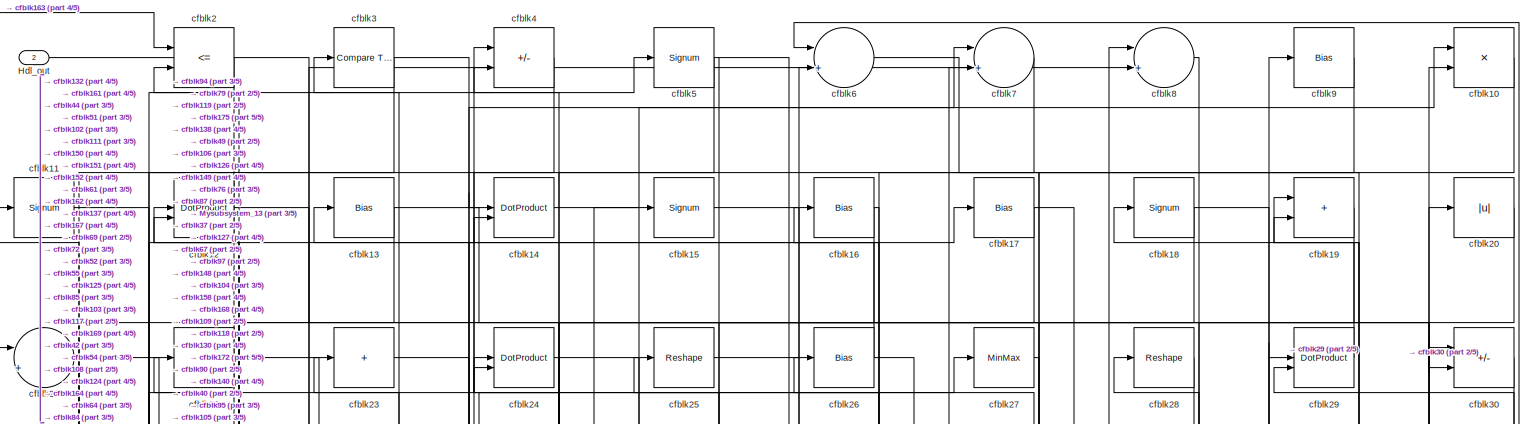
[diagram: root canvas - part 1/5, full width, top band]
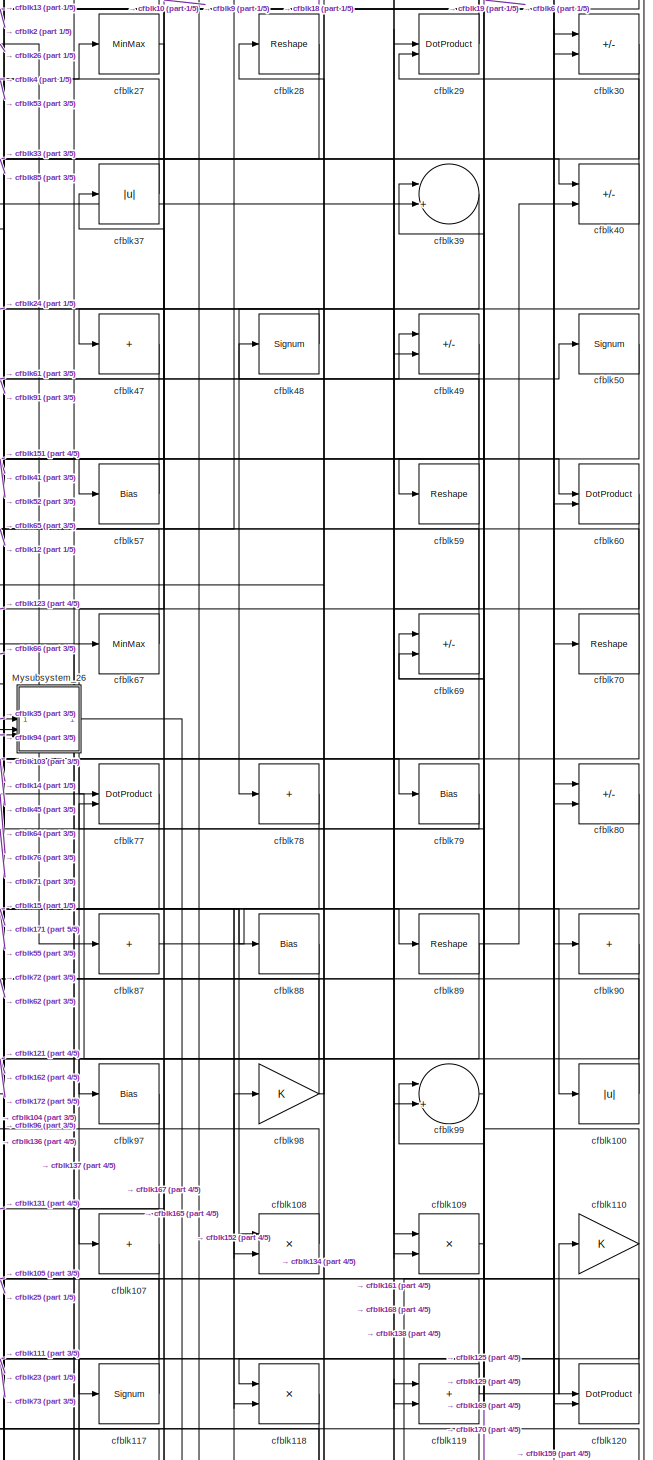
[diagram: root canvas - part 2/5, middle right region]
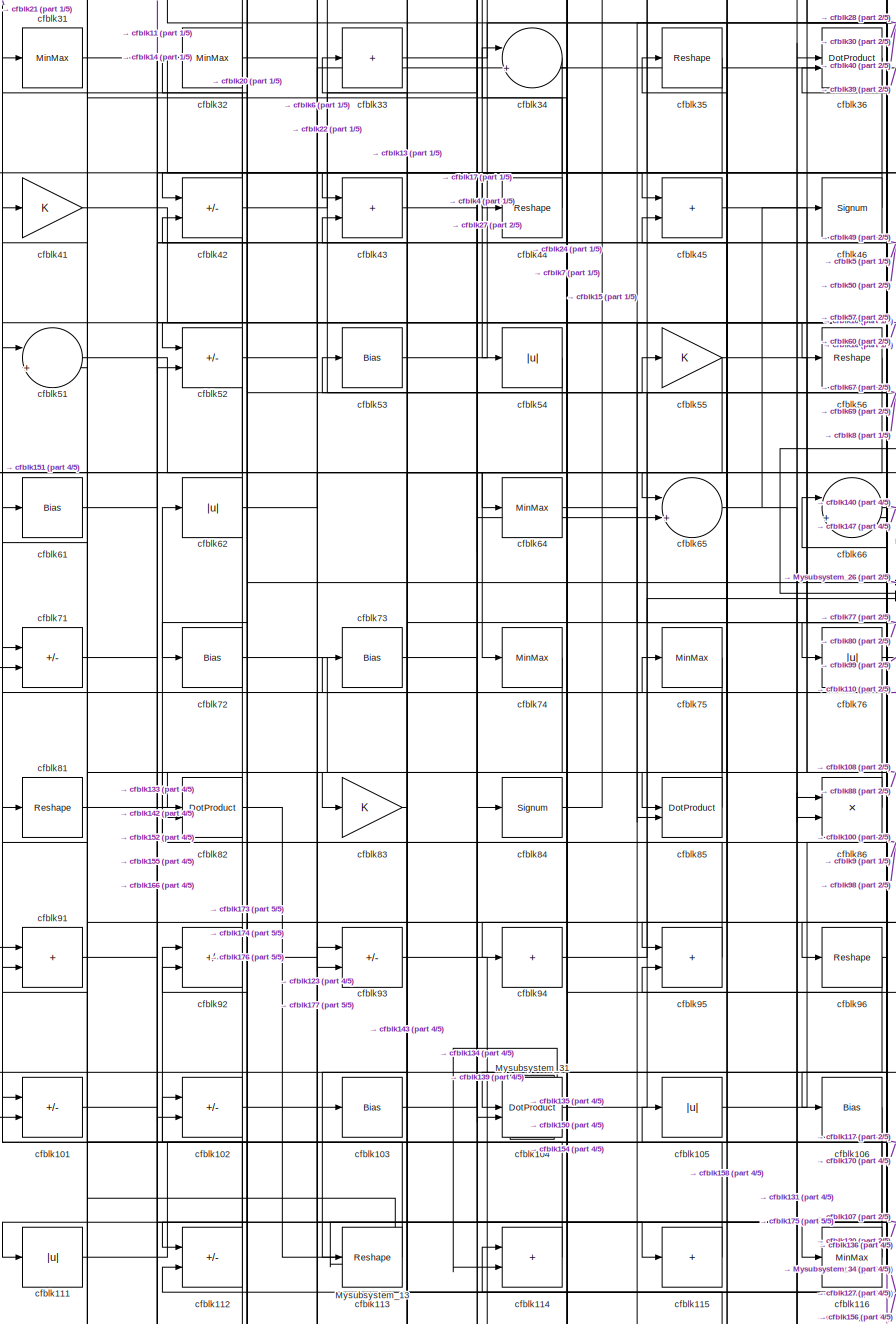
[diagram: root canvas - part 3/5, middle left region]
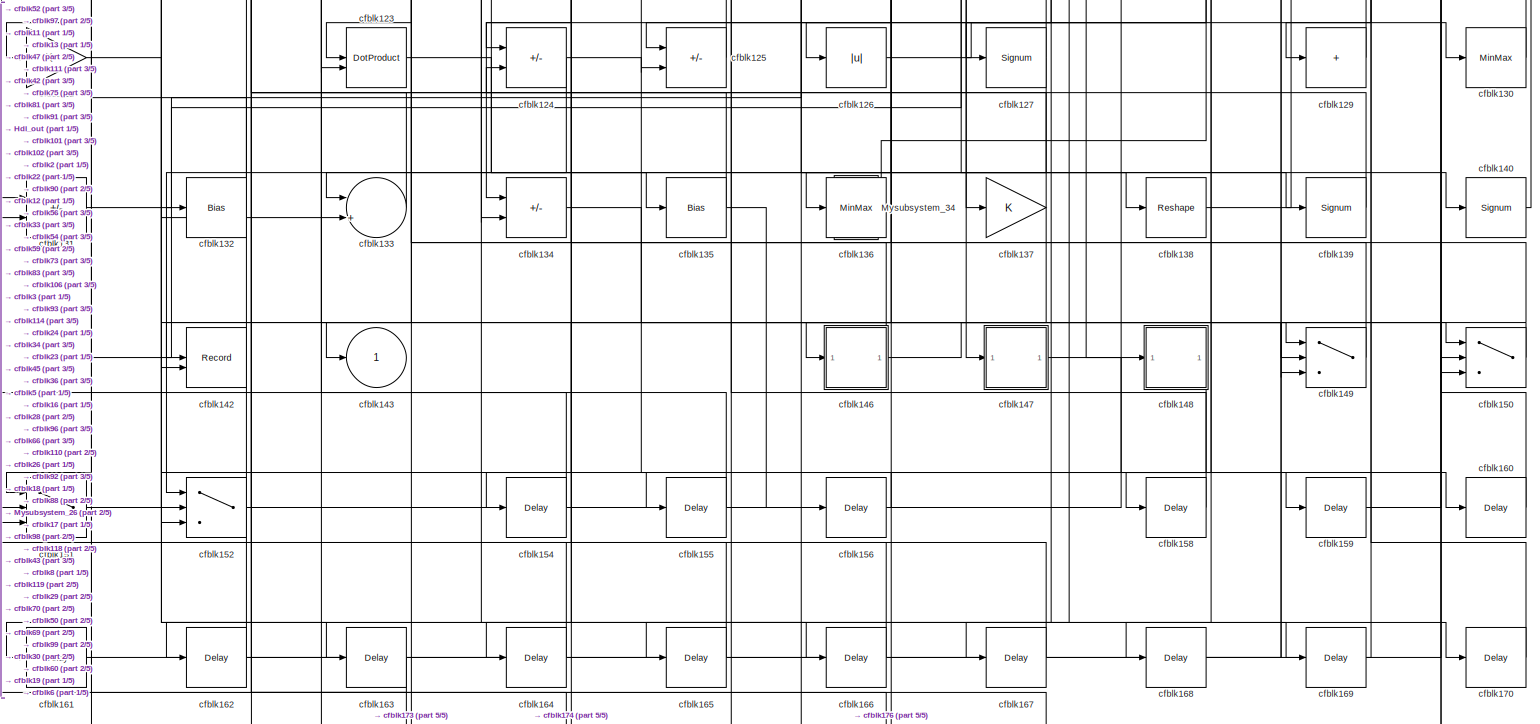
[diagram: root canvas - part 4/5, full width, bottom band]
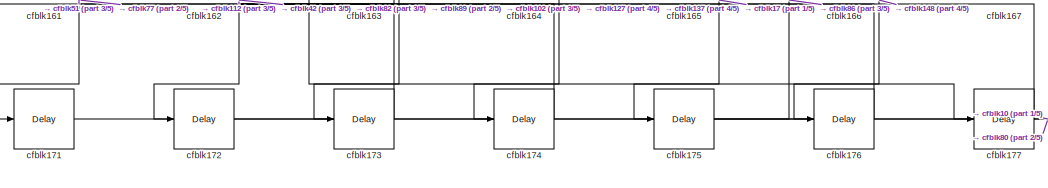
[diagram: root canvas - part 5/5, bottom center region]
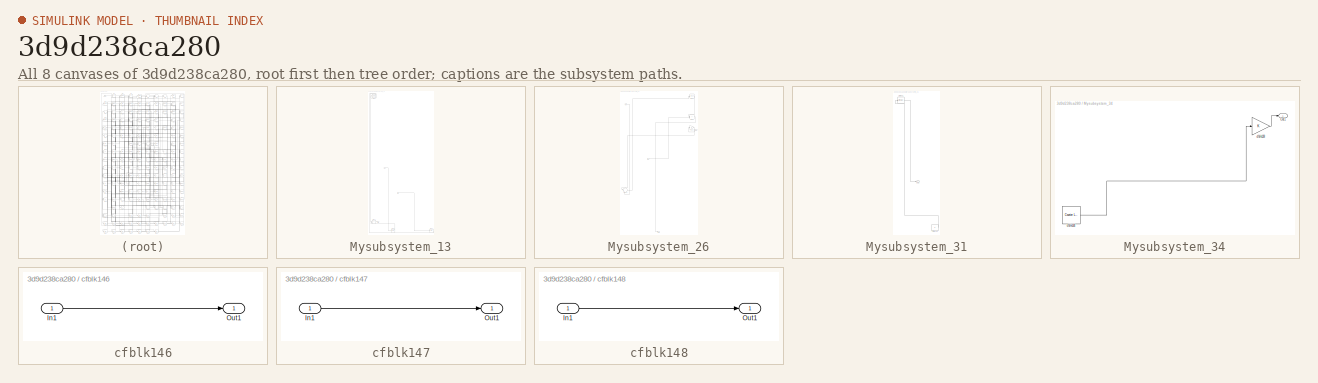
[diagram: thumbnail index - all 8 canvases of the model, root first then tree order]
MODEL slx_3d9d238ca280
KIND model
CONFIG AbsTol = auto
CONFIG EnableMultiTasking = off
CONFIG FixedStep = auto
CONFIG MaxStep = auto
CONFIG MinStep = auto
CONFIG RelTol = 1e-3
CONFIG SampleTimeConstraint = Unconstrained
CONFIG SolverName = VariableStepAuto
CONFIG StartTime = 0.0
CONFIG StopTime = 10.0
BLOCK [Outport] Hdl_out
  OutDataTypeStr = uint8
  Port = 2
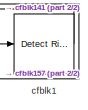
[diagram: Mysubsystem_13 - part 1/2, top left region]
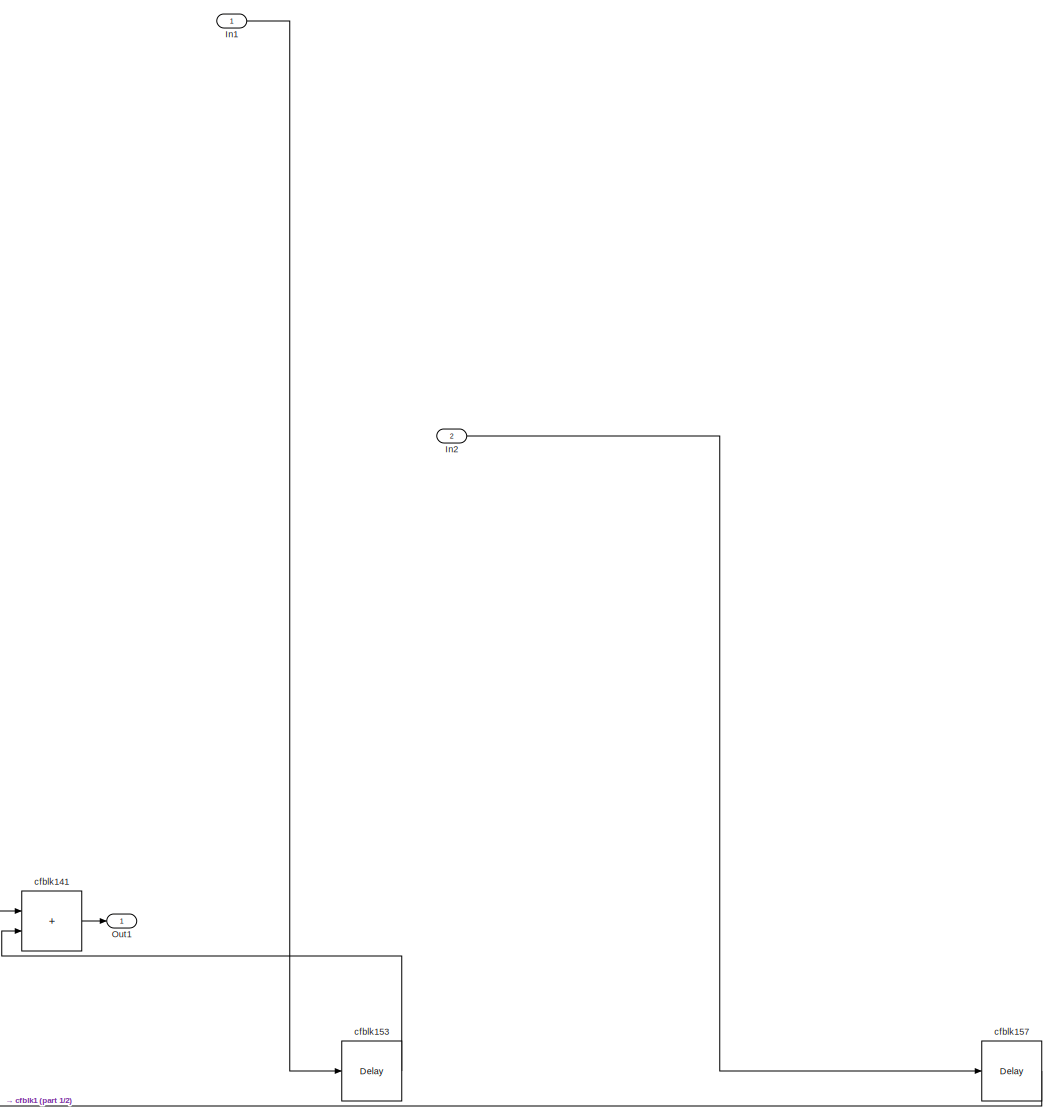
[diagram: Mysubsystem_13 - part 2/2, full width, bottom band]
BLOCK [SubSystem] Mysubsystem_13
  RTWFcnName = Mysubsystem_13
  RTWFcnNameOpts = User specified
  RTWFileNameOpts = Use function name
  RTWSystemCode = Reusable function
  TreatAsAtomicUnit = on
BLOCK [Inport] Mysubsystem_13/In1
BLOCK [Inport] Mysubsystem_13/In2
  Port = 2
BLOCK [Outport] Mysubsystem_13/Out1
BLOCK [Reference] Mysubsystem_13/cfblk1  REF=hdlsllib/Logic and Bit
Operations/Detect Rise
Positive
  SourceBlock = hdlsllib/Logic and Bit\nOperations/Detect Rise\nPositive
  SourceType = Detect Rise Positive
BLOCK [Sum] Mysubsystem_13/cfblk141
  IconShape = rectangular
BLOCK [Delay] Mysubsystem_13/cfblk153
  InputPortMap = u0
  SampleTime = 1
BLOCK [Delay] Mysubsystem_13/cfblk157
  InputPortMap = u0
  SampleTime = 1
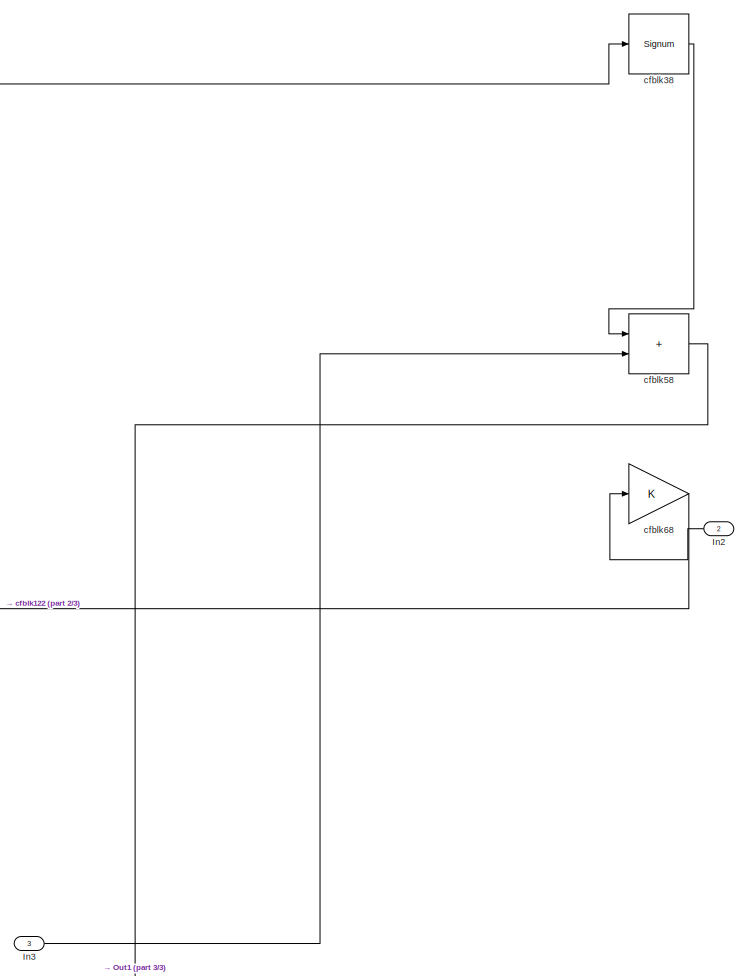
[diagram: Mysubsystem_26 - part 1/3, top center region]
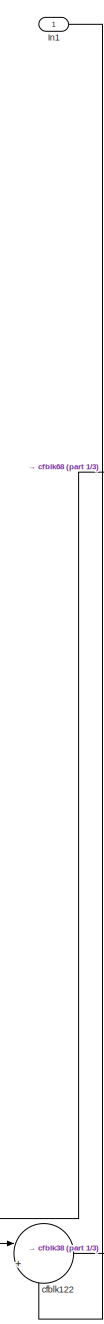
[diagram: Mysubsystem_26 - part 2/3, middle left region]
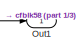
[diagram: Mysubsystem_26 - part 3/3, bottom center region]
BLOCK [SubSystem] Mysubsystem_26
  RTWFcnName = Mysubsystem_26
  RTWFcnNameOpts = User specified
  RTWFileNameOpts = Use function name
  RTWSystemCode = Reusable function
  TreatAsAtomicUnit = on
BLOCK [Inport] Mysubsystem_26/In1
BLOCK [Inport] Mysubsystem_26/In2
  Port = 2
BLOCK [Inport] Mysubsystem_26/In3
  Port = 3
BLOCK [Outport] Mysubsystem_26/Out1
BLOCK [Sum] Mysubsystem_26/cfblk122
  Inputs = |++
BLOCK [Signum] Mysubsystem_26/cfblk38
BLOCK [Sum] Mysubsystem_26/cfblk58
  IconShape = rectangular
BLOCK [Gain] Mysubsystem_26/cfblk68
BLOCK [SubSystem] Mysubsystem_31
  RTWFcnName = Mysubsystem_31
  RTWFcnNameOpts = User specified
  RTWFileNameOpts = Use function name
  RTWSystemCode = Reusable function
  TreatAsAtomicUnit = on
BLOCK [Outport] Mysubsystem_31/Out1
BLOCK [Constant] Mysubsystem_31/cfblk145
  SampleTime = -1
BLOCK [MinMax] Mysubsystem_31/cfblk63
BLOCK [SubSystem] Mysubsystem_34
  RTWFcnName = Mysubsystem_34
  RTWFcnNameOpts = User specified
  RTWFileNameOpts = Use function name
  RTWSystemCode = Reusable function
  TreatAsAtomicUnit = on
BLOCK [Outport] Mysubsystem_34/Out1
BLOCK [Gain] Mysubsystem_34/cfblk128
BLOCK [Reference] Mysubsystem_34/cfblk144  REF=hdlsllib/Sources/Counter
Limited
  SourceBlock = hdlsllib/Sources/Counter\nLimited
  SourceType = Counter Limited
BLOCK [Product] cfblk10
  Inputs = */
  OutDataTypeStr = uint8
  RndMeth = Zero
  SaturateOnIntegerOverflow = on
BLOCK [Abs] cfblk100
  OutDataTypeStr = uint8
  SaturateOnIntegerOverflow = off
BLOCK [Sum] cfblk101
  IconShape = rectangular
  Inputs = +-
  OutDataTypeStr = uint8
BLOCK [Sum] cfblk102
  IconShape = rectangular
  Inputs = +-
  OutDataTypeStr = uint8
BLOCK [Bias] cfblk103
  Bias = 0.0
  SaturateOnIntegerOverflow = off
BLOCK [DotProduct] cfblk104
  OutDataTypeStr = uint8
BLOCK [Abs] cfblk105
  OutDataTypeStr = uint8
  SaturateOnIntegerOverflow = off
BLOCK [Bias] cfblk106
  Bias = 0.0
  SaturateOnIntegerOverflow = off
BLOCK [Sum] cfblk107
  IconShape = rectangular
  Inputs = +
  OutDataTypeStr = uint8
BLOCK [Product] cfblk108
  Inputs = */
  OutDataTypeStr = uint8
  RndMeth = Zero
  SaturateOnIntegerOverflow = on
BLOCK [Product] cfblk109
  Inputs = */
  OutDataTypeStr = uint8
  RndMeth = Zero
  SaturateOnIntegerOverflow = on
BLOCK [Signum] cfblk11
BLOCK [Gain] cfblk110
  OutDataTypeStr = uint8
BLOCK [Abs] cfblk111
  OutDataTypeStr = uint8
  SaturateOnIntegerOverflow = off
BLOCK [Sum] cfblk112
  IconShape = rectangular
  Inputs = +-
  OutDataTypeStr = uint8
BLOCK [Reshape] cfblk113
BLOCK [Sum] cfblk114
  IconShape = rectangular
  OutDataTypeStr = uint8
BLOCK [Sum] cfblk115
  IconShape = rectangular
  Inputs = +
  OutDataTypeStr = uint8
BLOCK [MinMax] cfblk116
  OutDataTypeStr = uint8
BLOCK [Signum] cfblk117
BLOCK [Product] cfblk118
  Inputs = */
  OutDataTypeStr = uint8
  RndMeth = Zero
  SaturateOnIntegerOverflow = on
BLOCK [Sum] cfblk119
  IconShape = rectangular
  OutDataTypeStr = uint8
BLOCK [DotProduct] cfblk12
  OutDataTypeStr = uint8
BLOCK [DotProduct] cfblk120
  OutDataTypeStr = uint8
BLOCK [Gain] cfblk121
  OutDataTypeStr = uint8
BLOCK [DotProduct] cfblk123
  OutDataTypeStr = uint8
BLOCK [Sum] cfblk124
  IconShape = rectangular
  Inputs = +-
  OutDataTypeStr = uint8
BLOCK [Sum] cfblk125
  IconShape = rectangular
  Inputs = +-
  OutDataTypeStr = uint8
BLOCK [Abs] cfblk126
  OutDataTypeStr = uint8
  SaturateOnIntegerOverflow = off
BLOCK [Signum] cfblk127
BLOCK [Sum] cfblk129
  IconShape = rectangular
  Inputs = +
  OutDataTypeStr = uint8
BLOCK [Bias] cfblk13
  Bias = 0.0
  SaturateOnIntegerOverflow = off
BLOCK [MinMax] cfblk130
  OutDataTypeStr = uint8
BLOCK [Sum] cfblk131
  IconShape = rectangular
  Inputs = +-
  OutDataTypeStr = uint8
BLOCK [Bias] cfblk132
  Bias = 0.0
  SaturateOnIntegerOverflow = off
BLOCK [Sum] cfblk133
  Inputs = |++
  OutDataTypeStr = uint8
BLOCK [Sum] cfblk134
  IconShape = rectangular
  Inputs = +-
  OutDataTypeStr = uint8
BLOCK [Bias] cfblk135
  Bias = 0.0
  SaturateOnIntegerOverflow = off
BLOCK [MinMax] cfblk136
  OutDataTypeStr = uint8
BLOCK [Gain] cfblk137
  OutDataTypeStr = uint8
BLOCK [Reshape] cfblk138
BLOCK [Signum] cfblk139
BLOCK [DotProduct] cfblk14
  OutDataTypeStr = uint8
BLOCK [Signum] cfblk140
BLOCK [Record] cfblk142
  CompatibilityTag = XY
  FileSettingsInternal = {"entries":[{"content":{"excelSettings":{"content":{},"type":"Streamout.ExcelSettings"}},"type":"Streamout.FileSettingStorage","uuid":""}],"packageUris":["http:\/\/schema.mathworks.com\/mf0\/streamout_blocks\/R2020a"],"version":"1.0"}
  Layout = [1 1]
  SignalsInternal = {"entries":[{"content":{"signals":[{"content":{"blockPath":[],"dimensions":[1],"domain":"","lineColor":"#a2142f","plots":[1],"port":1,"signalID":20420,"signalName":"cfblk150"},"type":"RecordBlkView.Signal","uuid":""},{"content":{"blockPath":[],"dimensions":[1],"domain":"","lineColor":"#139fff","plots":[1],"port":2,"signalID":20423,"signalName":"cfblk75"},"type":"RecordBlkView.Signal","uuid":""}]},...<+143ch>
  VisualizationBindings = {"xyplotplugin":{"info":[{"series":[{"bindingParametersList":[{"parameter":"X-Axis","signalID":20420,"signalName":"cfblk150"},{"parameter":"Y-Axis","signalID":20423,"signalName":"cfblk75"}],"seriesID":10200}],"subplotID":1}]}}
  st = -1
BLOCK [Outport] cfblk143
  OutDataTypeStr = uint8
  VectorParamsAs1DForOutWhenUnconnected = off
BLOCK [SubSystem] cfblk146
  LibrarySourceBlock = hdlsllib/Ports &\nSubsystems/Subsystem
BLOCK [Inport] cfblk146/In1
BLOCK [Outport] cfblk146/Out1
BLOCK [SubSystem] cfblk147
  LibrarySourceBlock = hdlsllib/Ports &\nSubsystems/Subsystem
BLOCK [Inport] cfblk147/In1
BLOCK [Outport] cfblk147/Out1
BLOCK [SubSystem] cfblk148
  LibrarySourceBlock = hdlsllib/Ports &\nSubsystems/Subsystem
BLOCK [Inport] cfblk148/In1
BLOCK [Outport] cfblk148/Out1
BLOCK [Switch] cfblk149
  InputSameDT = off
  OutDataTypeStr = uint8
  SaturateOnIntegerOverflow = off
BLOCK [Signum] cfblk15
BLOCK [Switch] cfblk150
  InputSameDT = off
  OutDataTypeStr = uint8
  SaturateOnIntegerOverflow = off
BLOCK [Switch] cfblk151
  InputSameDT = off
  OutDataTypeStr = uint8
  SaturateOnIntegerOverflow = off
BLOCK [Switch] cfblk152
  InputSameDT = off
  OutDataTypeStr = uint8
  SaturateOnIntegerOverflow = off
BLOCK [Delay] cfblk154
  InputPortMap = u0
  SampleTime = 1
BLOCK [Delay] cfblk155
  InputPortMap = u0
  SampleTime = 1
BLOCK [Delay] cfblk156
  InputPortMap = u0
  SampleTime = 1
BLOCK [Delay] cfblk158
  InputPortMap = u0
  SampleTime = 1
BLOCK [Delay] cfblk159
  InputPortMap = u0
  SampleTime = 1
BLOCK [Bias] cfblk16
  Bias = 0.0
  SaturateOnIntegerOverflow = off
BLOCK [Delay] cfblk160
  InputPortMap = u0
  SampleTime = 1
BLOCK [Delay] cfblk161
  InputPortMap = u0
  SampleTime = 1
BLOCK [Delay] cfblk162
  InputPortMap = u0
  SampleTime = 1
BLOCK [Delay] cfblk163
  InputPortMap = u0
  SampleTime = 1
BLOCK [Delay] cfblk164
  InputPortMap = u0
  SampleTime = 1
BLOCK [Delay] cfblk165
  InputPortMap = u0
  SampleTime = 1
BLOCK [Delay] cfblk166
  InputPortMap = u0
  SampleTime = 1
BLOCK [Delay] cfblk167
  InputPortMap = u0
  SampleTime = 1
BLOCK [Delay] cfblk168
  InputPortMap = u0
  SampleTime = 1
BLOCK [Delay] cfblk169
  InputPortMap = u0
  SampleTime = 1
BLOCK [Bias] cfblk17
  Bias = 0.0
  SaturateOnIntegerOverflow = off
BLOCK [Delay] cfblk170
  InputPortMap = u0
  SampleTime = 1
BLOCK [Delay] cfblk171
  InputPortMap = u0
  SampleTime = 1
BLOCK [Delay] cfblk172
  InputPortMap = u0
  SampleTime = 1
BLOCK [Delay] cfblk173
  InputPortMap = u0
  SampleTime = 1
BLOCK [Delay] cfblk174
  InputPortMap = u0
  SampleTime = 1
BLOCK [Delay] cfblk175
  InputPortMap = u0
  SampleTime = 1
BLOCK [Delay] cfblk176
  InputPortMap = u0
  SampleTime = 1
BLOCK [Delay] cfblk177
  InputPortMap = u0
  SampleTime = 1
BLOCK [Signum] cfblk18
BLOCK [Sum] cfblk19
  IconShape = rectangular
  OutDataTypeStr = uint8
BLOCK [RelationalOperator] cfblk2
  InputSameDT = off
  Operator = <=
  OutDataTypeStr = boolean
BLOCK [Abs] cfblk20
  OutDataTypeStr = uint8
  SaturateOnIntegerOverflow = off
BLOCK [Sum] cfblk21
  Inputs = |++
  OutDataTypeStr = uint8
BLOCK [Sum] cfblk22
  IconShape = rectangular
  Inputs = +
  OutDataTypeStr = uint8
BLOCK [Sum] cfblk23
  IconShape = rectangular
  Inputs = +
  OutDataTypeStr = uint8
BLOCK [DotProduct] cfblk24
  OutDataTypeStr = uint8
BLOCK [Reshape] cfblk25
BLOCK [Bias] cfblk26
  Bias = 0.0
  SaturateOnIntegerOverflow = off
BLOCK [MinMax] cfblk27
  OutDataTypeStr = uint8
BLOCK [Reshape] cfblk28
BLOCK [DotProduct] cfblk29
  OutDataTypeStr = uint8
BLOCK [Reference] cfblk3  REF=hdlsllib/Logic and Bit
Operations/Compare
To Constant
  SourceBlock = hdlsllib/Logic and Bit\nOperations/Compare\nTo Constant
  SourceType = Compare To Constant
BLOCK [Sum] cfblk30
  IconShape = rectangular
  Inputs = +-
  OutDataTypeStr = uint8
BLOCK [MinMax] cfblk31
  OutDataTypeStr = uint8
BLOCK [MinMax] cfblk32
  OutDataTypeStr = uint8
BLOCK [Sum] cfblk33
  IconShape = rectangular
  Inputs = +
  OutDataTypeStr = uint8
BLOCK [Sum] cfblk34
  Inputs = |++
  OutDataTypeStr = uint8
BLOCK [Reshape] cfblk35
BLOCK [DotProduct] cfblk36
  OutDataTypeStr = uint8
BLOCK [Abs] cfblk37
  OutDataTypeStr = uint8
  SaturateOnIntegerOverflow = off
BLOCK [Sum] cfblk39
  Inputs = |++
  OutDataTypeStr = uint8
BLOCK [Sum] cfblk4
  IconShape = rectangular
  Inputs = +-
  OutDataTypeStr = uint8
BLOCK [Sum] cfblk40
  IconShape = rectangular
  Inputs = +-
  OutDataTypeStr = uint8
BLOCK [Gain] cfblk41
  OutDataTypeStr = uint8
BLOCK [Sum] cfblk42
  IconShape = rectangular
  Inputs = +-
  OutDataTypeStr = uint8
BLOCK [Sum] cfblk43
  IconShape = rectangular
  OutDataTypeStr = uint8
BLOCK [Reshape] cfblk44
BLOCK [Sum] cfblk45
  IconShape = rectangular
  OutDataTypeStr = uint8
BLOCK [Signum] cfblk46
BLOCK [Sum] cfblk47
  IconShape = rectangular
  Inputs = +
  OutDataTypeStr = uint8
BLOCK [Signum] cfblk48
BLOCK [Sum] cfblk49
  IconShape = rectangular
  Inputs = +-
  OutDataTypeStr = uint8
BLOCK [Signum] cfblk5
BLOCK [Signum] cfblk50
BLOCK [Sum] cfblk51
  Inputs = |++
  OutDataTypeStr = uint8
BLOCK [Sum] cfblk52
  IconShape = rectangular
  Inputs = +-
  OutDataTypeStr = uint8
BLOCK [Bias] cfblk53
  Bias = 0.0
  SaturateOnIntegerOverflow = off
BLOCK [Abs] cfblk54
  OutDataTypeStr = uint8
  SaturateOnIntegerOverflow = off
BLOCK [Gain] cfblk55
  OutDataTypeStr = uint8
BLOCK [Reshape] cfblk56
BLOCK [Bias] cfblk57
  Bias = 0.0
  SaturateOnIntegerOverflow = off
BLOCK [Reshape] cfblk59
BLOCK [Sum] cfblk6
  Inputs = |++
  OutDataTypeStr = uint8
BLOCK [DotProduct] cfblk60
  OutDataTypeStr = uint8
BLOCK [Bias] cfblk61
  Bias = 0.0
  SaturateOnIntegerOverflow = off
BLOCK [Abs] cfblk62
  OutDataTypeStr = uint8
  SaturateOnIntegerOverflow = off
BLOCK [MinMax] cfblk64
  OutDataTypeStr = uint8
BLOCK [Sum] cfblk65
  Inputs = |++
  OutDataTypeStr = uint8
BLOCK [Sum] cfblk66
  Inputs = |++
  OutDataTypeStr = uint8
BLOCK [MinMax] cfblk67
  OutDataTypeStr = uint8
BLOCK [Sum] cfblk69
  IconShape = rectangular
  Inputs = +-
  OutDataTypeStr = uint8
BLOCK [Sum] cfblk7
  Inputs = |++
  OutDataTypeStr = uint8
BLOCK [Reshape] cfblk70
BLOCK [Sum] cfblk71
  IconShape = rectangular
  Inputs = +-
  OutDataTypeStr = uint8
BLOCK [Bias] cfblk72
  Bias = 0.0
  SaturateOnIntegerOverflow = off
BLOCK [Bias] cfblk73
  Bias = 0.0
  SaturateOnIntegerOverflow = off
BLOCK [MinMax] cfblk74
  OutDataTypeStr = uint8
BLOCK [MinMax] cfblk75
  OutDataTypeStr = uint8
BLOCK [Abs] cfblk76
  OutDataTypeStr = uint8
  SaturateOnIntegerOverflow = off
BLOCK [DotProduct] cfblk77
  OutDataTypeStr = uint8
BLOCK [Sum] cfblk78
  IconShape = rectangular
  Inputs = +
  OutDataTypeStr = uint8
BLOCK [Bias] cfblk79
  Bias = 0.0
  SaturateOnIntegerOverflow = off
BLOCK [Sum] cfblk8
  Inputs = |++
  OutDataTypeStr = uint8
BLOCK [Sum] cfblk80
  IconShape = rectangular
  Inputs = +-
  OutDataTypeStr = uint8
BLOCK [Reshape] cfblk81
BLOCK [DotProduct] cfblk82
  OutDataTypeStr = uint8
BLOCK [Gain] cfblk83
  OutDataTypeStr = uint8
BLOCK [Signum] cfblk84
BLOCK [DotProduct] cfblk85
  OutDataTypeStr = uint8
BLOCK [Product] cfblk86
  Inputs = */
  OutDataTypeStr = uint8
  RndMeth = Zero
  SaturateOnIntegerOverflow = on
BLOCK [Sum] cfblk87
  IconShape = rectangular
  Inputs = +
  OutDataTypeStr = uint8
BLOCK [Bias] cfblk88
  Bias = 0.0
  SaturateOnIntegerOverflow = off
BLOCK [Reshape] cfblk89
BLOCK [Bias] cfblk9
  Bias = 0.0
  SaturateOnIntegerOverflow = off
BLOCK [Sum] cfblk90
  IconShape = rectangular
  Inputs = +
  OutDataTypeStr = uint8
BLOCK [Sum] cfblk91
  IconShape = rectangular
  OutDataTypeStr = uint8
BLOCK [Sum] cfblk92
  IconShape = rectangular
  Inputs = +-
  OutDataTypeStr = uint8
BLOCK [Sum] cfblk93
  IconShape = rectangular
  Inputs = +-
  OutDataTypeStr = uint8
BLOCK [Sum] cfblk94
  IconShape = rectangular
  Inputs = +
  OutDataTypeStr = uint8
BLOCK [Sum] cfblk95
  IconShape = rectangular
  OutDataTypeStr = uint8
BLOCK [Reshape] cfblk96
BLOCK [Bias] cfblk97
  Bias = 0.0
  SaturateOnIntegerOverflow = off
BLOCK [Gain] cfblk98
  OutDataTypeStr = uint8
BLOCK [Sum] cfblk99
  Inputs = |++
  OutDataTypeStr = uint8
LINE Mysubsystem_13/In1:1 -> Mysubsystem_13/cfblk153:1
LINE Mysubsystem_13/In2:1 -> Mysubsystem_13/cfblk157:1
LINE Mysubsystem_13/cfblk141:1 -> Mysubsystem_13/Out1:1
LINE Mysubsystem_13/cfblk153:1 -> Mysubsystem_13/cfblk141:2
LINE Mysubsystem_13/cfblk157:1 -> Mysubsystem_13/cfblk1:1
LINE Mysubsystem_13/cfblk1:1 -> Mysubsystem_13/cfblk141:1
NET Mysubsystem_13:1 -> cfblk7:2, cfblk91:2
LINE Mysubsystem_26/In1:1 -> Mysubsystem_26/cfblk122:2
LINE Mysubsystem_26/In2:1 -> Mysubsystem_26/cfblk68:1
LINE Mysubsystem_26/In3:1 -> Mysubsystem_26/cfblk58:2
LINE Mysubsystem_26/cfblk122:1 -> Mysubsystem_26/cfblk38:1
LINE Mysubsystem_26/cfblk38:1 -> Mysubsystem_26/cfblk58:1
LINE Mysubsystem_26/cfblk58:1 -> Mysubsystem_26/Out1:1
LINE Mysubsystem_26/cfblk68:1 -> Mysubsystem_26/cfblk122:1
LINE Mysubsystem_26:1 -> cfblk165:1
LINE Mysubsystem_31/cfblk145:1 -> Mysubsystem_31/cfblk63:1
LINE Mysubsystem_31/cfblk63:1 -> Mysubsystem_31/Out1:1
LINE Mysubsystem_31:1 -> cfblk114:2
LINE Mysubsystem_34/cfblk128:1 -> Mysubsystem_34/Out1:1
LINE Mysubsystem_34/cfblk144:1 -> Mysubsystem_34/cfblk128:1
NET Mysubsystem_34:1 -> cfblk125:1, cfblk43:2
LINE cfblk100:1 -> cfblk62:1
LINE cfblk101:1 -> cfblk155:1
NET cfblk102:1 -> cfblk113:1, cfblk177:1
LINE cfblk103:1 -> cfblk14:1
LINE cfblk104:1 -> cfblk8:1
LINE cfblk105:1 -> cfblk9:1
LINE cfblk106:1 -> cfblk134:2
LINE cfblk107:1 -> cfblk111:1
LINE cfblk108:1 -> cfblk4:2
LINE cfblk109:1 -> cfblk39:1
NET cfblk10:1 -> cfblk67:1, cfblk76:1
NET cfblk110:1 -> cfblk137:1, cfblk71:1
NET cfblk111:1 -> cfblk14:2, cfblk170:1, cfblk20:1
LINE cfblk112:1 -> cfblk61:1
LINE cfblk113:1 -> cfblk31:1
LINE cfblk114:1 -> cfblk41:1
LINE cfblk115:1 -> cfblk92:1
LINE cfblk116:1 -> cfblk81:1
LINE cfblk117:1 -> cfblk105:1
LINE cfblk118:1 -> cfblk134:1
NET cfblk119:1 -> cfblk110:1, cfblk25:1
NET cfblk11:1 -> cfblk102:2, cfblk150:3
LINE cfblk120:1 -> cfblk69:1
LINE cfblk121:1 -> cfblk163:1
LINE cfblk123:1 -> cfblk135:1
NET cfblk124:1 -> cfblk149:1, cfblk149:3, cfblk152:1
LINE cfblk125:1 -> cfblk23:1
LINE cfblk126:1 -> cfblk130:1
NET cfblk127:1 -> cfblk173:1, cfblk26:1, cfblk92:2
LINE cfblk129:1 -> cfblk34:2
LINE cfblk12:1 -> cfblk150:1
LINE cfblk130:1 -> cfblk19:1
NET cfblk131:1 -> cfblk132:1, cfblk36:1
LINE cfblk132:1 -> cfblk11:1
LINE cfblk133:1 -> cfblk101:1
LINE cfblk134:1 -> cfblk160:1
NET cfblk135:1 -> cfblk156:1, cfblk34:1
LINE cfblk136:1 -> cfblk66:1
NET cfblk137:1 -> cfblk174:1, cfblk2:2
LINE cfblk138:1 -> cfblk70:1
LINE cfblk139:1 -> cfblk102:1
NET cfblk13:1 -> cfblk10:1, cfblk161:1, cfblk90:1
LINE cfblk140:1 -> cfblk6:1
LINE cfblk146/In1:1 -> cfblk146/Out1:1
NET cfblk146:1 -> cfblk149:2, cfblk73:1
LINE cfblk147/In1:1 -> cfblk147/Out1:1
LINE cfblk147:1 -> cfblk159:1
LINE cfblk148/In1:1 -> cfblk148/Out1:1
LINE cfblk148:1 -> cfblk176:1
NET cfblk149:1 -> cfblk16:1, cfblk33:1
NET cfblk14:1 -> cfblk79:1, cfblk7:1
NET cfblk150:1 -> cfblk114:1, cfblk142:1
LINE cfblk151:1 -> cfblk24:2
NET cfblk152:1 -> cfblk22:1, cfblk98:1
LINE cfblk154:1 -> cfblk93:1
LINE cfblk155:1 -> cfblk91:1
LINE cfblk156:1 -> cfblk36:2
LINE cfblk158:1 -> cfblk45:2
LINE cfblk159:1 -> cfblk30:1
LINE cfblk15:1 -> cfblk118:2
LINE cfblk160:1 -> cfblk150:2
LINE cfblk161:1 -> cfblk119:1
NET cfblk162:1 -> Hdl_out:1, cfblk60:2
LINE cfblk163:1 -> cfblk2:1
LINE cfblk164:1 -> cfblk151:2
LINE cfblk165:1 -> cfblk131:1
LINE cfblk166:1 -> cfblk124:2
LINE cfblk167:1 -> cfblk12:2
LINE cfblk168:1 -> cfblk29:1
LINE cfblk169:1 -> cfblk99:1
NET cfblk16:1 -> cfblk106:1, cfblk126:1, cfblk94:1
LINE cfblk170:1 -> cfblk69:2
LINE cfblk171:1 -> cfblk80:1
LINE cfblk172:1 -> cfblk10:2
LINE cfblk173:1 -> cfblk112:2
LINE cfblk174:1 -> cfblk82:2
LINE cfblk175:1 -> cfblk86:1
LINE cfblk176:1 -> cfblk42:2
LINE cfblk177:1 -> cfblk51:2
NET cfblk17:1 -> cfblk148:1, cfblk175:1
NET cfblk18:1 -> cfblk109:1, cfblk124:1, cfblk127:1
LINE cfblk19:1 -> cfblk168:1
LINE cfblk20:1 -> cfblk72:1
LINE cfblk21:1 -> cfblk84:1
LINE cfblk22:1 -> cfblk55:1
LINE cfblk23:1 -> cfblk117:1
NET cfblk24:1 -> cfblk109:2, cfblk164:1
NET cfblk25:1 -> cfblk49:2, cfblk8:2
NET cfblk26:1 -> cfblk3:1, cfblk87:1
LINE cfblk27:1 -> cfblk57:1
NET cfblk28:1 -> cfblk104:2, cfblk136:1
LINE cfblk29:1 -> cfblk18:1
LINE cfblk2:1 -> cfblk30:2
NET cfblk30:1 -> cfblk59:1, cfblk85:1, cfblk85:2
LINE cfblk31:1 -> cfblk45:1
LINE cfblk32:1 -> cfblk56:1
LINE cfblk33:1 -> cfblk40:1
LINE cfblk34:1 -> cfblk101:2
NET cfblk35:1 -> Mysubsystem_26:1, cfblk42:1
NET cfblk36:1 -> cfblk43:1, cfblk82:1
LINE cfblk37:1 -> cfblk4:1
LINE cfblk39:1 -> cfblk78:1
NET cfblk3:1 -> cfblk152:3, cfblk169:1
NET cfblk40:1 -> cfblk19:2, cfblk52:2
LINE cfblk41:1 -> cfblk60:1
NET cfblk42:1 -> cfblk152:2, cfblk17:1, cfblk21:1
LINE cfblk43:1 -> cfblk65:2
LINE cfblk44:1 -> cfblk21:2
LINE cfblk45:1 -> cfblk80:2
LINE cfblk46:1 -> cfblk44:1
LINE cfblk47:1 -> cfblk151:1
LINE cfblk48:1 -> cfblk47:1
LINE cfblk49:1 -> cfblk65:1
LINE cfblk4:1 -> cfblk54:1
NET cfblk50:1 -> cfblk125:2, cfblk129:1
LINE cfblk51:1 -> cfblk74:1
NET cfblk52:1 -> cfblk151:3, cfblk6:2
LINE cfblk53:1 -> cfblk27:1
LINE cfblk54:1 -> cfblk143:1
NET cfblk55:1 -> cfblk108:1, cfblk71:2
LINE cfblk56:1 -> cfblk123:2
LINE cfblk57:1 -> cfblk52:1
NET cfblk59:1 -> cfblk123:1, cfblk28:1
NET cfblk5:1 -> cfblk138:1, cfblk51:1, cfblk95:1
LINE cfblk60:1 -> cfblk119:2
NET cfblk61:1 -> cfblk49:1, cfblk5:1
LINE cfblk62:1 -> cfblk39:2
LINE cfblk64:1 -> cfblk77:1
NET cfblk65:1 -> cfblk46:1, cfblk86:2
NET cfblk66:1 -> cfblk140:1, cfblk147:1
LINE cfblk67:1 -> cfblk53:1
NET cfblk69:1 -> cfblk103:1, cfblk12:1
LINE cfblk6:1 -> cfblk118:1
NET cfblk70:1 -> cfblk120:2, cfblk37:1
NET cfblk71:1 -> cfblk115:1, cfblk88:1
LINE cfblk72:1 -> cfblk100:1
NET cfblk73:1 -> Mysubsystem_13:2, cfblk120:1
LINE cfblk74:1 -> cfblk93:2
NET cfblk75:1 -> cfblk104:1, cfblk142:2
LINE cfblk76:1 -> cfblk99:2
LINE cfblk77:1 -> cfblk171:1
LINE cfblk78:1 -> cfblk108:2
LINE cfblk79:1 -> cfblk77:2
LINE cfblk7:1 -> cfblk64:1
LINE cfblk80:1 -> cfblk96:1
NET cfblk81:1 -> cfblk166:1, cfblk83:1
NET cfblk82:1 -> Mysubsystem_13:1, cfblk112:1
LINE cfblk83:1 -> cfblk133:1
NET cfblk84:1 -> cfblk15:1, cfblk24:1
LINE cfblk85:1 -> cfblk13:1
LINE cfblk86:1 -> cfblk35:1
LINE cfblk87:1 -> cfblk89:1
LINE cfblk88:1 -> cfblk167:1
NET cfblk89:1 -> cfblk107:1, cfblk172:1, cfblk40:2
LINE cfblk8:1 -> cfblk158:1
NET cfblk90:1 -> cfblk121:1, cfblk162:1
NET cfblk91:1 -> cfblk133:2, cfblk50:1
NET cfblk92:1 -> cfblk116:1, cfblk75:1
LINE cfblk93:1 -> cfblk139:1
LINE cfblk94:1 -> Mysubsystem_26:3
LINE cfblk95:1 -> cfblk32:1
NET cfblk96:1 -> cfblk146:1, cfblk154:1, cfblk95:2
LINE cfblk97:1 -> cfblk131:2
NET cfblk98:1 -> Mysubsystem_26:2, cfblk48:1, cfblk66:2
LINE cfblk99:1 -> cfblk29:2
LINE cfblk9:1 -> cfblk97:1
note: NET lines group one-source signal fan-out (src -> all destinations, sorted); 1:1 wires keep LINE
